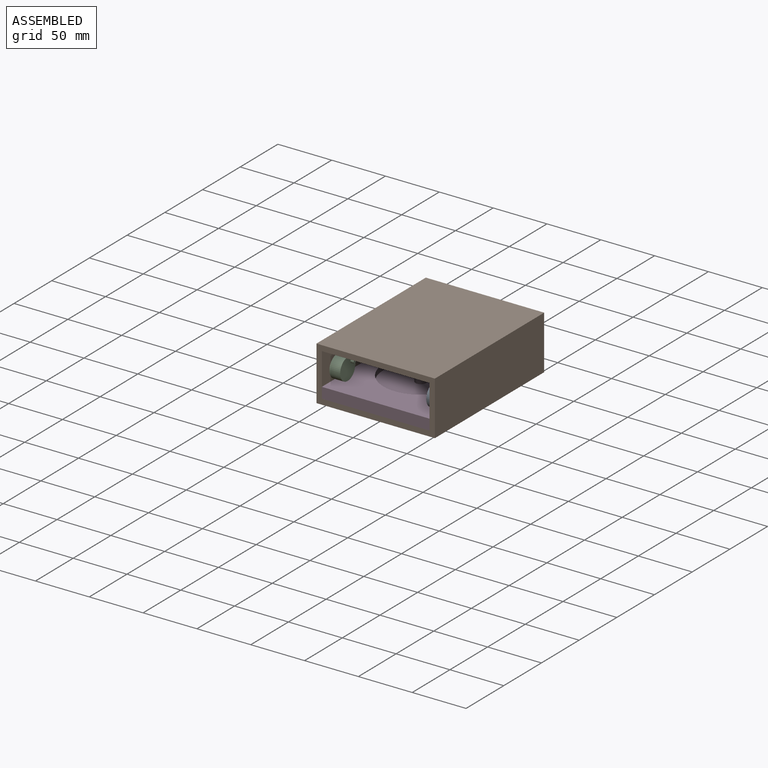
[diagram: assembled view]
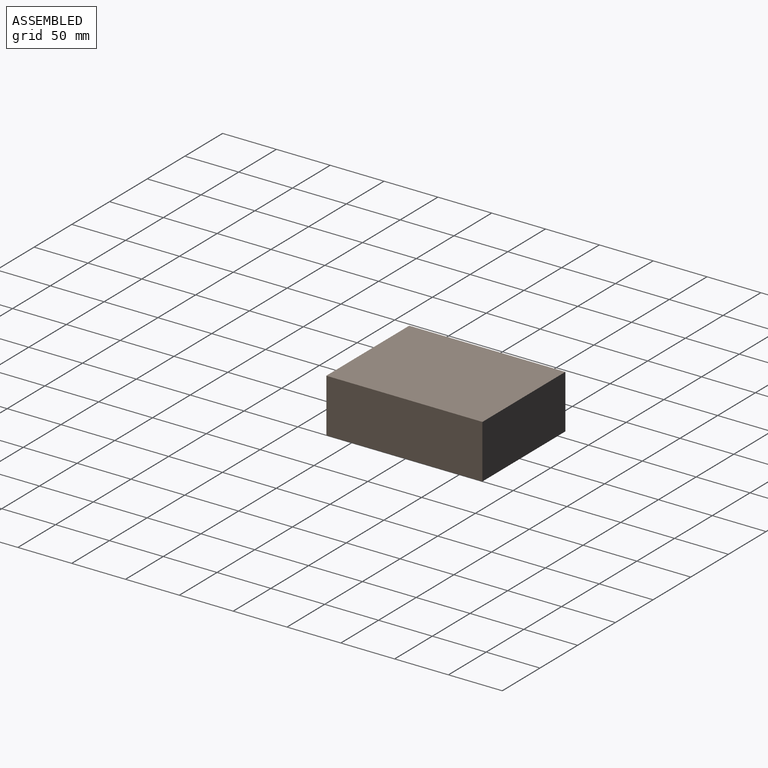
[diagram: assembled view, second angle]
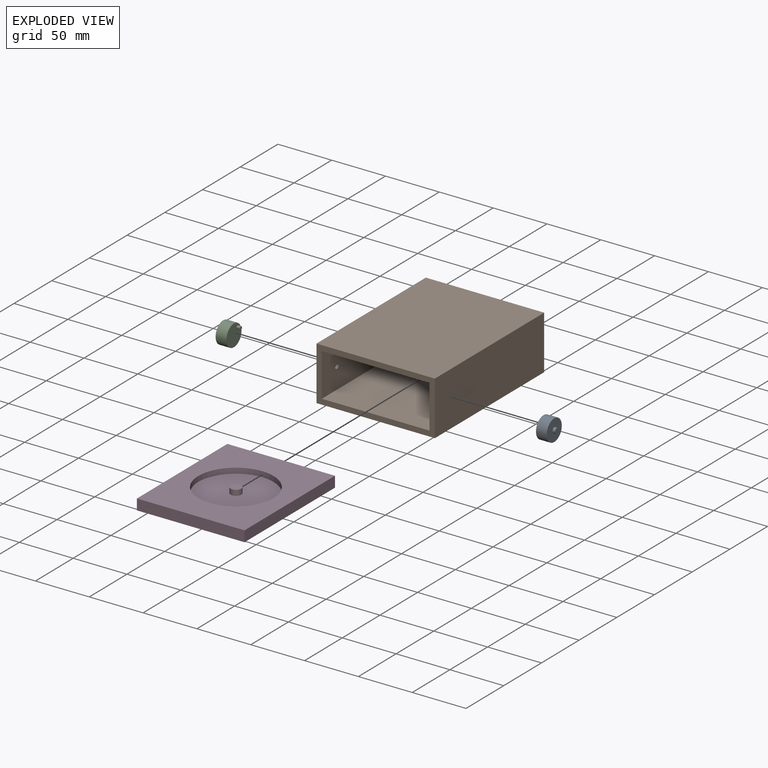
[diagram: exploded view]
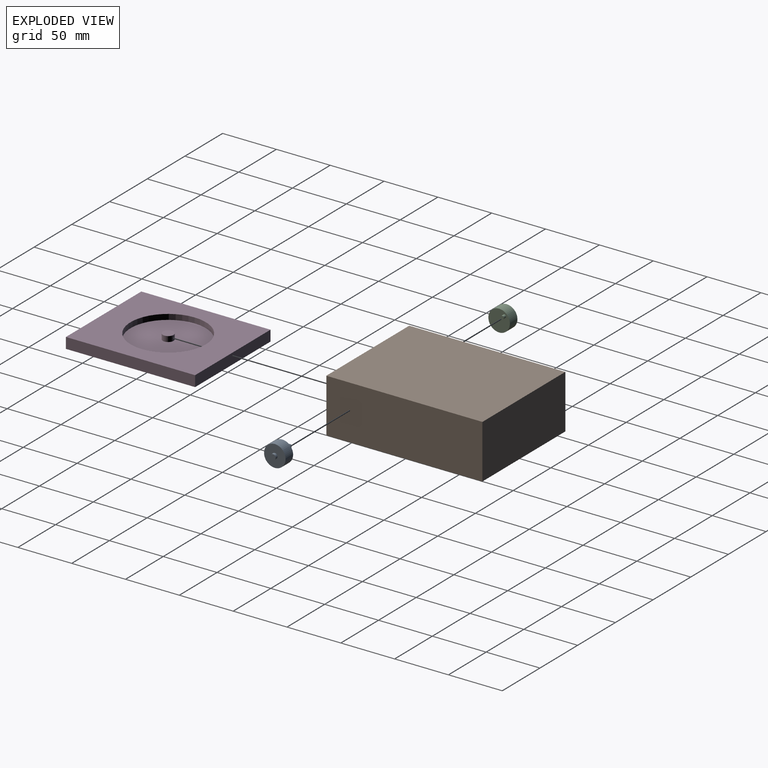
[diagram: exploded view, second angle]
ASSEMBLY  parts=4 mates=3
PART A: 7 faces, bbox 15.5x20x20 mm
  f0: cylinder r=10mm len=20mm, axis (-1,0,0), area 628.3mm2, adj f1,f2
  f1: plane 20x20mm, normal (1,0,0), area 294.5mm2, adj f0,f3
  f2: plane 20x20mm, normal (-1,0,0), area 307.1mm2, adj f0,f5
  f3: cylinder r=2.5mm len=5mm, axis (-1,0,0), area 39.3mm2, adj f1,f4
  f4: plane 5x5mm, normal (1,0,0), area 19.6mm2, adj f3
  f5: cylinder r=1.5mm len=3mm, axis (1,0,0), area 28.3mm2, adj f2,f6
  f6: plane 3x3mm, normal (-1,0,0), area 7.1mm2, adj f5
PART B: 15 faces, bbox 110x145x50 mm
  f0: plane 145x110mm, normal (0,0,1), area 15950mm2, adj f1,f7,f8,f14
  f1: plane 145x50mm, normal (-1,0,0), area 7250mm2, adj f0,f2,f8,f14
  f2: plane 145x110mm, normal (0,0,-1), area 15950mm2, adj f1,f7,f8,f14
  f3: plane 140x100mm, normal (0,0,-1), area 14000mm2, adj f4,f6,f8,f13
  f4: plane 140x40mm, normal (-1,0,0), area 5580.4mm2, adj f3,f5,f8,f11,f13
  f5: plane 140x100mm, normal (0,0,1), area 14000mm2, adj f4,f6,f8,f13
  f6: plane 140x40mm, normal (1,0,0), area 5580.4mm2, adj f3,f5,f8,f9,f13
  f7: plane 145x50mm, normal (1,0,0), area 7250mm2, adj f0,f2,f8,f14
  f8: plane 110x50mm, normal (0,-1,0), area 1500mm2, adj f0,f1,f2,f3,f4,f5,f6,f7
  f9: cylinder r=2.5mm len=5mm, axis (1,0,0), area 39.3mm2, adj f6,f10
  f10: plane 5x5mm, normal (1,0,0), area 19.6mm2, adj f9
  f11: cylinder r=2.5mm len=5mm, axis (-1,0,0), area 39.3mm2, adj f4,f12
  f12: plane 5x5mm, normal (-1,0,0), area 19.6mm2, adj f11
  f13: plane 100x40mm, normal (0,-1,0), area 4000mm2, adj f3,f4,f5,f6
  f14: plane 110x50mm, normal (0,1,0), area 5500mm2, adj f0,f1,f2,f7
PART C: 7 faces, bbox 15.5x20x20 mm
  f0: cylinder r=10mm len=20mm, axis (1,0,0), area 628.3mm2, adj f1,f2
  f1: plane 20x20mm, normal (-1,0,0), area 294.5mm2, adj f0,f3
  f2: plane 20x20mm, normal (1,0,0), area 307.1mm2, adj f0,f5
  f3: cylinder r=2.5mm len=5mm, axis (1,0,0), area 39.3mm2, adj f1,f4
  f4: plane 5x5mm, normal (-1,0,0), area 19.6mm2, adj f3
  f5: cylinder r=1.5mm len=3mm, axis (-1,0,0), area 28.3mm2, adj f2,f6
  f6: plane 3x3mm, normal (1,0,0), area 7.1mm2, adj f5
PART D: 10 faces, bbox 100x120x10 mm
  f0: plane 120x10mm, normal (1,0,0), area 1200mm2, adj f1,f3,f4,f5
  f1: plane 100x10mm, normal (0,1,0), area 1000mm2, adj f0,f2,f4,f5
  f2: plane 120x10mm, normal (-1,0,0), area 1200mm2, adj f1,f3,f4,f5
  f3: plane 100x10mm, normal (0,-1,0), area 1000mm2, adj f0,f2,f4,f5
  f4: plane 120x100mm, normal (0,0,1), area 8151.5mm2, adj f0,f1,f2,f3,f7
  f5: plane 120x100mm, normal (0,0,-1), area 12000mm2, adj f0,f1,f2,f3
  f6: cylinder r=5mm len=10mm, axis (0,0,1), area 157.1mm2, adj f8,f9
  f7: cylinder r=35mm len=70mm, axis (0,0,1), area 1099.6mm2, adj f4,f8
  f8: plane 70x70mm, normal (0,0,1), area 3769.9mm2, adj f6,f7
  f9: plane 10x10mm, normal (0,0,1), area 78.5mm2, adj f6
PLACE A at identity
PLACE B at identity fixed
PLACE C rot(axis=(1,0,0),0deg) t=(0,0,0)mm
PLACE D t=(0,-10,0)mm
MATE slider D.f3 <-> B.f8  axis (0,-1,0) through (50,-70,0)mm
MATE revolute B.f9 <-> C.f0  axis (1,0,0) through (-50,-50,20)mm
MATE revolute A.f0 <-> B.f9  axis (1,0,0) through (52.5,-50,20)mm
